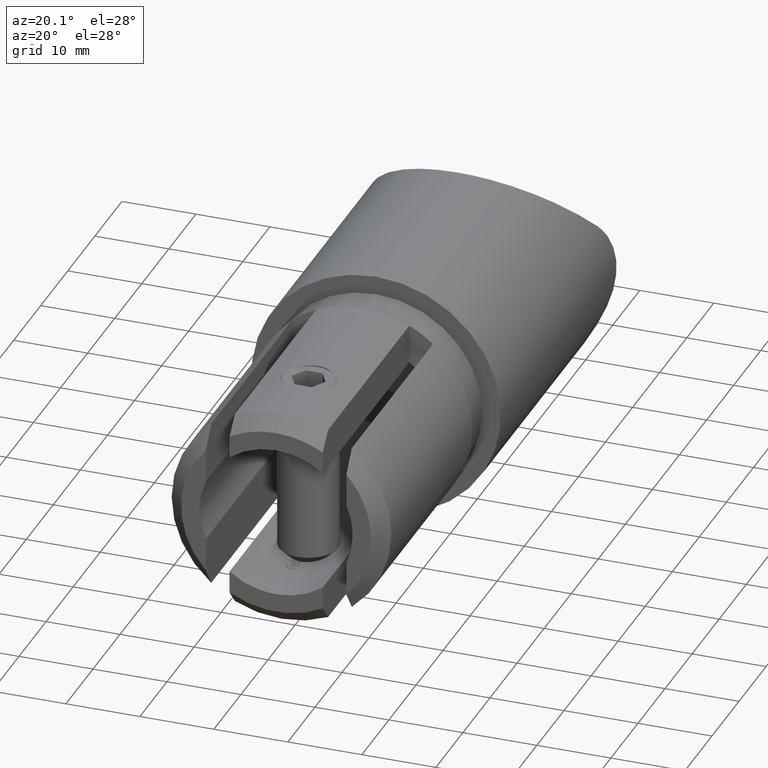
[diagram: clean part render]
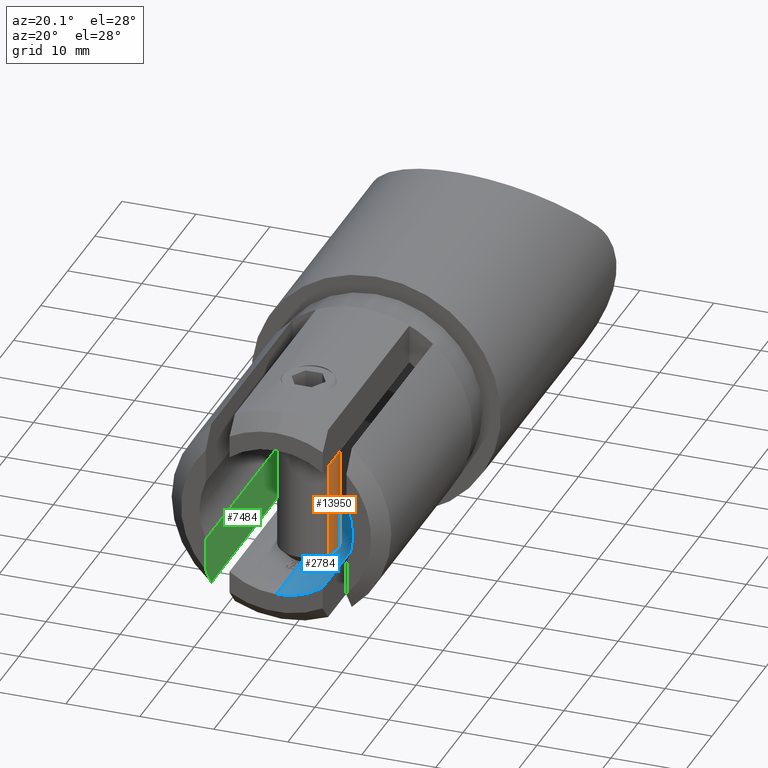
[diagram: same view with three faces highlighted in distinct colors, each labeled with its STEP entity id]
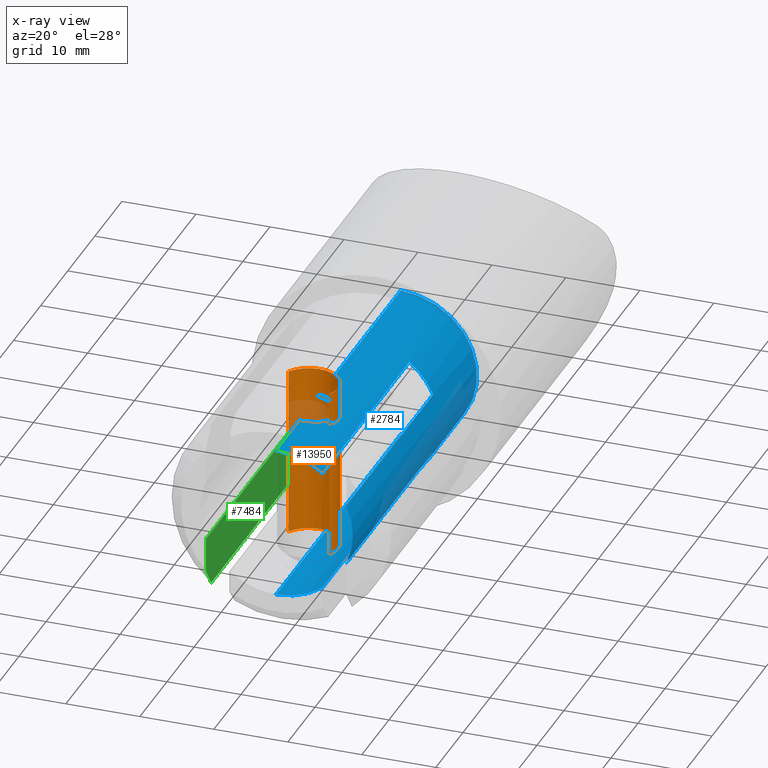
[diagram: x-ray of the same camera — body ghosted, the three highlighted faces saturated]
A machine part, auxiliary view with three faces highlighted in distinct colors.
The next image is the same camera in x-ray (body ghosted, the three faces saturated) — at least one of them is partly hidden behind the body in this view.
Their STEP definitions:

[orange] entity #13950 — the highlighted cylindrical surface (edge-blend (fillet) strip) has radius 4 mm, axis along (0, -0, -1).
#148 = VERTEX_POINT ( 'NONE', #6678 ) ;
#154 = EDGE_CURVE ( 'NONE', #2686, #9393, #9904, .T. ) ;
#204 = CYLINDRICAL_SURFACE ( 'NONE', #10160, 4.000000000000000000 ) ;
#351 = EDGE_CURVE ( 'NONE', #9942, #2686, #2430, .T. ) ;
#1753 = DIRECTION ( 'NONE',  ( -5.421010862427522200E-017, -1.000000000000000000, 0.0000000000000000000 ) ) ;
#1869 = CARTESIAN_POINT ( 'NONE',  ( 1.399999999999980800, 0.0000000000000000000, 4.000000000000000000 ) ) ;
#2430 = LINE ( 'NONE', #2969, #6340 ) ;
#2599 = ORIENTED_EDGE ( 'NONE', *, *, #7841, .T. ) ;
#2686 = VERTEX_POINT ( 'NONE', #1869 ) ;
#2867 = DIRECTION ( 'NONE',  ( 0.0000000000000000000, 0.0000000000000000000, -1.000000000000000000 ) ) ;
#2969 = CARTESIAN_POINT ( 'NONE',  ( 25.00000000000000000, 0.0000000000000000000, 4.000000000000000000 ) ) ;
#3473 = DIRECTION ( 'NONE',  ( -1.000000000000000000, 3.242134472605236300E-017, -0.0000000000000000000 ) ) ;
#3965 = ORIENTED_EDGE ( 'NONE', *, *, #154, .F. ) ;
#5003 = FACE_OUTER_BOUND ( 'NONE', #9872, .T. ) ;
#5157 = ORIENTED_EDGE ( 'NONE', *, *, #9299, .T. ) ;
#5701 = CARTESIAN_POINT ( 'NONE',  ( 25.00000000000000000, 4.898587196589412800E-016, -4.000000000000000000 ) ) ;
#5819 = EDGE_CURVE ( 'NONE', #9393, #148, #6063, .T. ) ;
#6063 = CIRCLE ( 'NONE', #10806, 4.000000000000000000 ) ;
#6340 = VECTOR ( 'NONE', #10541, 1000.000000000000000 ) ;
#6633 = LINE ( 'NONE', #5701, #8539 ) ;
#6678 = CARTESIAN_POINT ( 'NONE',  ( 1.399999999999980800, 4.898587196589412800E-016, -4.000000000000000000 ) ) ;
#6683 = ORIENTED_EDGE ( 'NONE', *, *, #5819, .F. ) ;
#7453 = AXIS2_PLACEMENT_3D ( 'NONE', #8271, #9374, #2867 ) ;
#7841 = EDGE_CURVE ( 'NONE', #9942, #11949, #8695, .T. ) ;
#8271 = CARTESIAN_POINT ( 'NONE',  ( 24.39999999999999900, 0.0000000000000000000, 0.0000000000000000000 ) ) ;
#8539 = VECTOR ( 'NONE', #8913, 1000.000000000000000 ) ;
#8695 = CIRCLE ( 'NONE', #7453, 4.000000000000000000 ) ;
#8913 = DIRECTION ( 'NONE',  ( -1.000000000000000000, -0.0000000000000000000, -0.0000000000000000000 ) ) ;
#9017 = CARTESIAN_POINT ( 'NONE',  ( 24.39999999999999900, 0.0000000000000000000, 4.000000000000000000 ) ) ;
#9299 = EDGE_CURVE ( 'NONE', #11949, #148, #6633, .T. ) ;
#9374 = DIRECTION ( 'NONE',  ( -1.000000000000000000, 0.0000000000000000000, 0.0000000000000000000 ) ) ;
#9393 = VERTEX_POINT ( 'NONE', #13464 ) ;
#9534 = CARTESIAN_POINT ( 'NONE',  ( 25.00000000000000000, 0.0000000000000000000, 0.0000000000000000000 ) ) ;
#9872 = EDGE_LOOP ( 'NONE', ( #2599, #5157, #6683, #3965, #12324 ) ) ;
#9904 = CIRCLE ( 'NONE', #12323, 4.000000000000000000 ) ;
#9942 = VERTEX_POINT ( 'NONE', #9017 ) ;
#10160 = AXIS2_PLACEMENT_3D ( 'NONE', #9534, #11832, #13003 ) ;
#10440 = CARTESIAN_POINT ( 'NONE',  ( 1.399999999999980800, -4.538988261647268600E-017, 0.0000000000000000000 ) ) ;
#10541 = DIRECTION ( 'NONE',  ( -1.000000000000000000, -0.0000000000000000000, -0.0000000000000000000 ) ) ;
#10806 = AXIS2_PLACEMENT_3D ( 'NONE', #10440, #11602, #1753 ) ;
#11602 = DIRECTION ( 'NONE',  ( -1.000000000000000000, 3.242134472605236300E-017, -0.0000000000000000000 ) ) ;
#11832 = DIRECTION ( 'NONE',  ( -1.000000000000000000, -0.0000000000000000000, -0.0000000000000000000 ) ) ;
#11949 = VERTEX_POINT ( 'NONE', #12670 ) ;
#12138 = DIRECTION ( 'NONE',  ( -5.421010862427522200E-017, -1.000000000000000000, 0.0000000000000000000 ) ) ;
#12232 = CARTESIAN_POINT ( 'NONE',  ( 1.399999999999980800, -4.538988261647268600E-017, 0.0000000000000000000 ) ) ;
#12323 = AXIS2_PLACEMENT_3D ( 'NONE', #12232, #3473, #12138 ) ;
#12324 = ORIENTED_EDGE ( 'NONE', *, *, #351, .F. ) ;
#12670 = CARTESIAN_POINT ( 'NONE',  ( 24.39999999999999900, 4.898587196589412800E-016, -4.000000000000000000 ) ) ;
#13003 = DIRECTION ( 'NONE',  ( 0.0000000000000000000, 0.0000000000000000000, 1.000000000000000000 ) ) ;
#13464 = CARTESIAN_POINT ( 'NONE',  ( 1.399999999999980800, 4.000000000000000000, 0.0000000000000000000 ) ) ;
#13950 = ADVANCED_FACE ( 'NONE', ( #5003 ), #204, .T. ) ;

[blue] entity #2784 — the highlighted cylindrical surface (partial cylindrical patch) has radius 10.35 mm, axis along (-0, -1, -0).
#16 = DIRECTION ( 'NONE',  ( 0.0000000000000000000, 0.0000000000000000000, -1.000000000000000000 ) ) ;
#20 = CARTESIAN_POINT ( 'NONE',  ( 0.0000000000000000000, -4.999999999999992000, 0.0000000000000000000 ) ) ;
#22 = ORIENTED_EDGE ( 'NONE', *, *, #7776, .F. ) ;
#75 = EDGE_CURVE ( 'NONE', #4708, #6898, #11819, .T. ) ;
#107 = DIRECTION ( 'NONE',  ( -0.0000000000000000000, -1.000000000000000000, -0.0000000000000000000 ) ) ;
#108 = ORIENTED_EDGE ( 'NONE', *, *, #14130, .F. ) ;
#133 = VERTEX_POINT ( 'NONE', #1400 ) ;
#135 = CARTESIAN_POINT ( 'NONE',  ( 0.0000000000000000000, -37.00000000000000000, 0.0000000000000000000 ) ) ;
#141 = DIRECTION ( 'NONE',  ( -0.0000000000000000000, -1.000000000000000000, -0.0000000000000000000 ) ) ;
#227 = ORIENTED_EDGE ( 'NONE', *, *, #10656, .F. ) ;
#255 = DIRECTION ( 'NONE',  ( 0.0000000000000000000, 1.000000000000000000, 0.0000000000000000000 ) ) ;
#279 = LINE ( 'NONE', #1521, #13813 ) ;
#307 = LINE ( 'NONE', #12454, #7315 ) ;
#357 = DIRECTION ( 'NONE',  ( -0.0000000000000000000, -1.000000000000000000, -0.0000000000000000000 ) ) ;
#404 = ORIENTED_EDGE ( 'NONE', *, *, #11186, .F. ) ;
#407 = CARTESIAN_POINT ( 'NONE',  ( 0.03298145209657681000, -12.49772717947731800, -10.34994749293275100 ) ) ;
#431 = CARTESIAN_POINT ( 'NONE',  ( 0.01696047008547008400, -24.06613498263889300, -10.34998610349088800 ) ) ;
#501 = DIRECTION ( 'NONE',  ( -0.0000000000000000000, -1.000000000000000000, -0.0000000000000000000 ) ) ;
#540 = ORIENTED_EDGE ( 'NONE', *, *, #8476, .F. ) ;
#556 = EDGE_CURVE ( 'NONE', #7342, #10092, #4782, .T. ) ;
#567 = VECTOR ( 'NONE', #8237, 1000.000000000000000 ) ;
#577 = CARTESIAN_POINT ( 'NONE',  ( 0.01137959079447232300, -24.15713213877648600, -10.35000000000000100 ) ) ;
#583 = EDGE_CURVE ( 'NONE', #5370, #5340, #13142, .T. ) ;
#633 = CARTESIAN_POINT ( 'NONE',  ( 2.701391935896606500, -22.92354968645598100, 9.992068611870221800 ) ) ;
#638 = CARTESIAN_POINT ( 'NONE',  ( 0.03392094017094016800, -16.10663937299679600, -10.34994441385159900 ) ) ;
#652 = CARTESIAN_POINT ( 'NONE',  ( 0.0000000000000000000, -24.80762553418802700, -10.35000000000000000 ) ) ;
#710 = ORIENTED_EDGE ( 'NONE', *, *, #11067, .T. ) ;
#719 = CARTESIAN_POINT ( 'NONE',  ( 9.499999999999998200, 9.000000000000003600, -4.107614879708180000 ) ) ;
#825 = ORIENTED_EDGE ( 'NONE', *, *, #3704, .F. ) ;
#826 = CARTESIAN_POINT ( 'NONE',  ( 0.0000000000000000000, 9.000000000000001800, -10.35000000000000000 ) ) ;
#865 = CARTESIAN_POINT ( 'NONE',  ( 0.0000000000000000000, -37.00000000000000000, -10.35000000000000000 ) ) ;
#892 = ORIENTED_EDGE ( 'NONE', *, *, #8857, .T. ) ;
#911 = CARTESIAN_POINT ( 'NONE',  ( 0.02359450554170731600, -20.07051245924850100, -10.35000000000000000 ) ) ;
#923 = CARTESIAN_POINT ( 'NONE',  ( 0.01696047008547008400, -27.03421724759616000, -10.34998610349088800 ) ) ;
#939 = CARTESIAN_POINT ( 'NONE',  ( 0.0000000000000000000, -23.55255074786325400, -10.35000000000000000 ) ) ;
#945 = EDGE_CURVE ( 'NONE', #8155, #3792, #6764, .T. ) ;
#953 = CARTESIAN_POINT ( 'NONE',  ( 0.03392094017094016800, -16.10663937299679600, -10.34994441385159900 ) ) ;
#961 = ORIENTED_EDGE ( 'NONE', *, *, #1207, .F. ) ;
#991 = CARTESIAN_POINT ( 'NONE',  ( 0.0000000000000000000, 9.000000000000001800, -10.35000000000000000 ) ) ;
#995 = CIRCLE ( 'NONE', #10365, 10.35000000000000000 ) ;
#1004 = CARTESIAN_POINT ( 'NONE',  ( 0.03334062381538302500, -20.13377132790780500, -10.34994631578223500 ) ) ;
#1006 = VERTEX_POINT ( 'NONE', #14058 ) ;
#1014 = DIRECTION ( 'NONE',  ( -0.0000000000000000000, -1.000000000000000000, -0.0000000000000000000 ) ) ;
#1077 = LINE ( 'NONE', #4048, #567 ) ;
#1087 = EDGE_CURVE ( 'NONE', #10642, #11035, #279, .T. ) ;
#1089 = CARTESIAN_POINT ( 'NONE',  ( 0.03392094017094016800, -19.15846395900107200, -10.34994441385159900 ) ) ;
#1106 = EDGE_CURVE ( 'NONE', #13911, #13557, #1283, .T. ) ;
#1132 = CARTESIAN_POINT ( 'NONE',  ( 0.0000000000000000000, 9.000000000000001800, -10.35000000000000000 ) ) ;
#1138 = LINE ( 'NONE', #4426, #1871 ) ;
#1148 = CARTESIAN_POINT ( 'NONE',  ( 0.03277526509720840600, -20.25550097915338600, -10.34994816869066600 ) ) ;
#1178 = B_SPLINE_CURVE_WITH_KNOTS ( 'NONE', 3,
 ( #6784, #7952, #8899, #9102 ),
 .UNSPECIFIED., .F., .F.,
 ( 4, 4 ),
 ( 0.0000000000000000000, 0.0001390896998286012200 ),
 .UNSPECIFIED. ) ;
#1207 = EDGE_CURVE ( 'NONE', #3794, #13324, #6524, .T. ) ;
#1217 = CARTESIAN_POINT ( 'NONE',  ( 2.941779307132074200E-013, -26.89628570502593900, -10.34999999999998900 ) ) ;
#1261 = VERTEX_POINT ( 'NONE', #4546 ) ;
#1276 = EDGE_CURVE ( 'NONE', #13030, #1485, #4304, .T. ) ;
#1283 = B_SPLINE_CURVE_WITH_KNOTS ( 'NONE', 3,
 ( #5797, #8009, #407, #3685 ),
 .UNSPECIFIED., .F., .F.,
 ( 4, 4 ),
 ( 0.0007607350962127554400, 0.0009246726897137504900 ),
 .UNSPECIFIED. ) ;
#1320 = LINE ( 'NONE', #3712, #1510 ) ;
#1342 = CARTESIAN_POINT ( 'NONE',  ( 0.0000000000000000000, 9.000000000000001800, -10.35000000000000000 ) ) ;
#1353 = ORIENTED_EDGE ( 'NONE', *, *, #13539, .T. ) ;
#1361 = B_SPLINE_CURVE_WITH_KNOTS ( 'NONE', 3,
 ( #12681, #9518, #12631, #9337, #11524, #6166, #13747, #633, #13846, #6114, #8280, #1766, #9430, #2927, #10496, #12732 ),
 .UNSPECIFIED., .F., .F.,
 ( 4, 2, 2, 2, 2, 2, 2, 4 ),
 ( 0.0000000000000000000, 0.0006692266279032026100, 0.001338453255806405200, 0.002007679883709608200, 0.002676906511612810400, 0.004015359767419223200, 0.004684586395322429400, 0.005353813023225633900 ),
 .UNSPECIFIED. ) ;
#1377 = CARTESIAN_POINT ( 'NONE',  ( 9.500000000000000000, -4.999999999999989300, -4.107614879708180000 ) ) ;
#1386 = VECTOR ( 'NONE', #5963, 1000.000000000000000 ) ;
#1400 = CARTESIAN_POINT ( 'NONE',  ( 1.267509438238515500E-015, -21.60000000000000900, 10.35000000000000000 ) ) ;
#1418 = VERTEX_POINT ( 'NONE', #11201 ) ;
#1439 = CARTESIAN_POINT ( 'NONE',  ( 0.0000000000000000000, 9.000000000000001800, -10.35000000000000000 ) ) ;
#1485 = VERTEX_POINT ( 'NONE', #13470 ) ;
#1510 = VECTOR ( 'NONE', #12384, 1000.000000000000000 ) ;
#1521 = CARTESIAN_POINT ( 'NONE',  ( 0.0000000000000000000, 9.000000000000001800, -10.35000000000000000 ) ) ;
#1545 = EDGE_LOOP ( 'NONE', ( #4372, #5804, #10052, #404, #12008, #710, #3819, #6113, #22, #13789, #13330, #12478, #12825, #2991, #11289, #9364, #2454, #7645, #4765, #5307, #9994, #7230, #3132, #6697, #11542, #11049, #5966, #1863, #12592, #10865, #3413, #227, #2820, #108, #10817, #7894, #10818, #7974, #13907, #11843, #540, #11111, #3634, #7328, #7294, #961, #8751, #3576, #3361, #8443, #2216, #1353, #12023, #13748, #3211, #10652, #9731, #8716, #14198, #1968, #12921, #9806, #892, #825, #12120, #11782 ) ) ;
#1598 = CARTESIAN_POINT ( 'NONE',  ( 6.299999999999999800, -37.00000000000000000, -8.211729415902596000 ) ) ;
#1621 = VERTEX_POINT ( 'NONE', #9207 ) ;
#1700 = CARTESIAN_POINT ( 'NONE',  ( 0.0000000000000000000, 9.000000000000001800, 0.0000000000000000000 ) ) ;
#1742 = EDGE_CURVE ( 'NONE', #13713, #2551, #10408, .T. ) ;
#1766 = CARTESIAN_POINT ( 'NONE',  ( 1.101451452984497400, -21.77574459522221400, 10.29328751494545800 ) ) ;
#1803 = CARTESIAN_POINT ( 'NONE',  ( 0.03311161729763324700, -12.38645894744306600, -10.34994706632891200 ) ) ;
#1828 = VERTEX_POINT ( 'NONE', #865 ) ;
#1863 = ORIENTED_EDGE ( 'NONE', *, *, #13929, .F. ) ;
#1867 = CARTESIAN_POINT ( 'NONE',  ( 0.0000000000000000000, 9.000000000000001800, -10.35000000000000000 ) ) ;
#1871 = VECTOR ( 'NONE', #2229, 1000.000000000000000 ) ;
#1874 = VERTEX_POINT ( 'NONE', #10482 ) ;
#1912 = CARTESIAN_POINT ( 'NONE',  ( 1.267509437117510600E-015, 9.000000000000001800, 10.35000000000000000 ) ) ;
#1916 = VERTEX_POINT ( 'NONE', #4208 ) ;
#1968 = ORIENTED_EDGE ( 'NONE', *, *, #12028, .T. ) ;
#2006 = EDGE_CURVE ( 'NONE', #4915, #3846, #4018, .T. ) ;
#2060 = DIRECTION ( 'NONE',  ( 0.0000000000000000000, 1.000000000000000000, 0.0000000000000000000 ) ) ;
#2078 = VERTEX_POINT ( 'NONE', #953 ) ;
#2086 = CARTESIAN_POINT ( 'NONE',  ( 0.03392094017094017500, -20.19782276642628500, -10.34994441385159900 ) ) ;
#2110 = VERTEX_POINT ( 'NONE', #1132 ) ;
#2134 = DIRECTION ( 'NONE',  ( 0.0000000000000000000, 1.000000000000000000, 0.0000000000000000000 ) ) ;
#2154 = VECTOR ( 'NONE', #12069, 1000.000000000000000 ) ;
#2214 = CARTESIAN_POINT ( 'NONE',  ( 0.01696047008547008400, -27.03421724759616000, -10.34998610349088800 ) ) ;
#2216 = ORIENTED_EDGE ( 'NONE', *, *, #556, .F. ) ;
#2229 = DIRECTION ( 'NONE',  ( -0.0000000000000000000, -1.000000000000000000, -0.0000000000000000000 ) ) ;
#2238 = DIRECTION ( 'NONE',  ( -0.0000000000000000000, -1.000000000000000000, -0.0000000000000000000 ) ) ;
#2239 = DIRECTION ( 'NONE',  ( 0.0000000000000000000, -1.000000000000000000, 0.0000000000000000000 ) ) ;
#2240 = VECTOR ( 'NONE', #13783, 1000.000000000000000 ) ;
#2273 = B_SPLINE_CURVE_WITH_KNOTS ( 'NONE', 3,
 ( #5437, #10775, #7542, #4252 ),
 .UNSPECIFIED., .F., .F.,
 ( 4, 4 ),
 ( 0.0000000000000000000, 0.0001893280310144309600 ),
 .UNSPECIFIED. ) ;
#2280 = CARTESIAN_POINT ( 'NONE',  ( 3.377617734580304500, -25.44865676253873900, 9.783472197335301600 ) ) ;
#2296 = DIRECTION ( 'NONE',  ( -0.0000000000000000000, -1.000000000000000000, -0.0000000000000000000 ) ) ;
#2310 = LINE ( 'NONE', #1342, #13584 ) ;
#2329 = CARTESIAN_POINT ( 'NONE',  ( 0.03392094017094017500, -20.19782276642628500, -10.34994441385159900 ) ) ;
#2368 = VERTEX_POINT ( 'NONE', #939 ) ;
#2398 = CARTESIAN_POINT ( 'NONE',  ( 0.01155295959033867500, -26.94114927652826800, -10.35000000000000000 ) ) ;
#2435 = EDGE_CURVE ( 'NONE', #4630, #12201, #4559, .T. ) ;
#2452 = VECTOR ( 'NONE', #12565, 1000.000000000000000 ) ;
#2454 = ORIENTED_EDGE ( 'NONE', *, *, #2976, .T. ) ;
#2474 = DIRECTION ( 'NONE',  ( 0.0000000000000000000, 1.000000000000000000, 0.0000000000000000000 ) ) ;
#2495 = VECTOR ( 'NONE', #13299, 1000.000000000000000 ) ;
#2529 = CARTESIAN_POINT ( 'NONE',  ( 0.0000000000000000000, -21.31376869658119600, -10.35000000000000000 ) ) ;
#2551 = VERTEX_POINT ( 'NONE', #9940 ) ;
#2563 = CARTESIAN_POINT ( 'NONE',  ( 0.0000000000000000000, -27.77570779914529800, -10.35000000000000000 ) ) ;
#2626 = VERTEX_POINT ( 'NONE', #10311 ) ;
#2697 = CARTESIAN_POINT ( 'NONE',  ( 0.0000000000000000000, 9.000000000000001800, -10.35000000000000000 ) ) ;
#2743 = EDGE_CURVE ( 'NONE', #13713, #2368, #8152, .T. ) ;
#2784 = ADVANCED_FACE ( 'NONE', ( #4961 ), #7646, .F. ) ;
#2785 = CARTESIAN_POINT ( 'NONE',  ( 0.0000000000000000000, -37.00000000000000000, 0.0000000000000000000 ) ) ;
#2798 = EDGE_CURVE ( 'NONE', #8589, #12830, #4089, .T. ) ;
#2820 = ORIENTED_EDGE ( 'NONE', *, *, #10959, .T. ) ;
#2845 = EDGE_CURVE ( 'NONE', #12616, #1261, #12768, .T. ) ;
#2888 = LINE ( 'NONE', #7745, #4705 ) ;
#2927 = CARTESIAN_POINT ( 'NONE',  ( 0.4454503112118056200, -21.62185377550479300, 10.34275815717657200 ) ) ;
#2968 = LINE ( 'NONE', #13308, #10072 ) ;
#2976 = EDGE_CURVE ( 'NONE', #14099, #5380, #6753, .T. ) ;
#2991 = ORIENTED_EDGE ( 'NONE', *, *, #583, .F. ) ;
#3030 = EDGE_CURVE ( 'NONE', #5176, #2551, #10854, .T. ) ;
#3095 = DIRECTION ( 'NONE',  ( -0.0000000000000000000, -1.000000000000000000, -0.0000000000000000000 ) ) ;
#3132 = ORIENTED_EDGE ( 'NONE', *, *, #9786, .T. ) ;
#3141 = CARTESIAN_POINT ( 'NONE',  ( 0.0000000000000000000, 9.000000000000001800, -10.35000000000000000 ) ) ;
#3182 = CARTESIAN_POINT ( 'NONE',  ( 2.559961637110909700, -27.24836696436187500, 10.02969392965470200 ) ) ;
#3211 = ORIENTED_EDGE ( 'NONE', *, *, #10607, .T. ) ;
#3247 = VECTOR ( 'NONE', #3589, 1000.000000000000000 ) ;
#3255 = AXIS2_PLACEMENT_3D ( 'NONE', #1700, #9282, #4920 ) ;
#3316 = CARTESIAN_POINT ( 'NONE',  ( -5.112429149681145100E-014, -28.40000000000064200, 10.35000000000021100 ) ) ;
#3327 = LINE ( 'NONE', #11276, #10973 ) ;
#3344 = EDGE_CURVE ( 'NONE', #4953, #3606, #2888, .T. ) ;
#3356 = CARTESIAN_POINT ( 'NONE',  ( 0.0000000000000000000, 9.000000000000001800, -10.35000000000000000 ) ) ;
#3361 = ORIENTED_EDGE ( 'NONE', *, *, #7587, .T. ) ;
#3389 = B_SPLINE_CURVE_WITH_KNOTS ( 'NONE', 3,
 ( #10556, #9574, #5497, #8657 ),
 .UNSPECIFIED., .F., .F.,
 ( 4, 4 ),
 ( 0.0000000000000000000, 0.0001431975852921743900 ),
 .UNSPECIFIED. ) ;
#3413 = ORIENTED_EDGE ( 'NONE', *, *, #2743, .T. ) ;
#3464 = CARTESIAN_POINT ( 'NONE',  ( 2.937533554483963100E-013, -23.92820344006866400, -10.35000000000000000 ) ) ;
#3487 = CARTESIAN_POINT ( 'NONE',  ( 0.01696047008547008400, -27.03421724759616000, -10.34998610349088800 ) ) ;
#3576 = ORIENTED_EDGE ( 'NONE', *, *, #9815, .F. ) ;
#3589 = DIRECTION ( 'NONE',  ( 0.0000000000000000000, 1.000000000000000000, 0.0000000000000000000 ) ) ;
#3606 = VERTEX_POINT ( 'NONE', #4773 ) ;
#3634 = ORIENTED_EDGE ( 'NONE', *, *, #12737, .F. ) ;
#3673 = CARTESIAN_POINT ( 'NONE',  ( 0.0000000000000000000, -22.55188301282051100, -10.35000000000000000 ) ) ;
#3685 = CARTESIAN_POINT ( 'NONE',  ( 0.03392094017094016800, -12.44211780515491100, -10.34994441385159900 ) ) ;
#3704 = EDGE_CURVE ( 'NONE', #12616, #10362, #12061, .T. ) ;
#3712 = CARTESIAN_POINT ( 'NONE',  ( 0.0000000000000000000, 9.000000000000001800, -10.35000000000000000 ) ) ;
#3719 = CARTESIAN_POINT ( 'NONE',  ( 3.869881777768083700E-016, -28.75359222342704900, -10.34999999999999100 ) ) ;
#3783 = EDGE_CURVE ( 'NONE', #2078, #11035, #2273, .T. ) ;
#3792 = VERTEX_POINT ( 'NONE', #13073 ) ;
#3794 = VERTEX_POINT ( 'NONE', #5259 ) ;
#3819 = ORIENTED_EDGE ( 'NONE', *, *, #8160, .F. ) ;
#3841 = CARTESIAN_POINT ( 'NONE',  ( 0.0000000000000000000, 9.000000000000001800, -10.35000000000000000 ) ) ;
#3845 = VERTEX_POINT ( 'NONE', #14025 ) ;
#3846 = VERTEX_POINT ( 'NONE', #7589 ) ;
#3882 = CARTESIAN_POINT ( 'NONE',  ( 0.01572887937184547600, -24.11149513460321700, -10.34998812169238700 ) ) ;
#3891 = VECTOR ( 'NONE', #13815, 1000.000000000000000 ) ;
#3955 = CARTESIAN_POINT ( 'NONE',  ( 0.02440894485334394600, -16.23226912304876600, -10.34999999999999800 ) ) ;
#3999 = VECTOR ( 'NONE', #255, 1000.000000000000000 ) ;
#4018 = B_SPLINE_CURVE_WITH_KNOTS ( 'NONE', 3,
 ( #11934, #11891, #10907, #1089 ),
 .UNSPECIFIED., .F., .F.,
 ( 4, 4 ),
 ( 0.0007607350962043421400, 0.0009246726897136279800 ),
 .UNSPECIFIED. ) ;
#4048 = CARTESIAN_POINT ( 'NONE',  ( 0.0000000000000000000, 9.000000000000001800, -10.35000000000000000 ) ) ;
#4081 = B_SPLINE_CURVE_WITH_KNOTS ( 'NONE', 3,
 ( #10529, #1803, #8216, #7252 ),
 .UNSPECIFIED., .F., .F.,
 ( 4, 4 ),
 ( 0.0000000000000000000, 0.0001649383054922219000 ),
 .UNSPECIFIED. ) ;
#4086 = VECTOR ( 'NONE', #6401, 1000.000000000000000 ) ;
#4089 = LINE ( 'NONE', #7363, #4223 ) ;
#4166 = VECTOR ( 'NONE', #357, 1000.000000000000000 ) ;
#4167 = CARTESIAN_POINT ( 'NONE',  ( 0.0000000000000000000, 9.000000000000001800, -10.35000000000000000 ) ) ;
#4173 = CARTESIAN_POINT ( 'NONE',  ( 0.0000000000000000000, 9.000000000000001800, -10.35000000000000000 ) ) ;
#4197 = CARTESIAN_POINT ( 'NONE',  ( -7.394097456574685100E-012, -12.60270360180989600, -10.34999999999998700 ) ) ;
#4208 = CARTESIAN_POINT ( 'NONE',  ( 1.988077383247672700E-013, -12.28095206869608800, -10.35000000000000000 ) ) ;
#4223 = VECTOR ( 'NONE', #1014, 1000.000000000000000 ) ;
#4228 = CARTESIAN_POINT ( 'NONE',  ( 0.0000000000000000000, -18.05735844017093700, -10.35000000000000000 ) ) ;
#4252 = CARTESIAN_POINT ( 'NONE',  ( 2.296306320006409000E-015, -15.92041143640413400, -10.35000000000000900 ) ) ;
#4253 = VECTOR ( 'NONE', #5309, 1000.000000000000000 ) ;
#4304 = LINE ( 'NONE', #4461, #11649 ) ;
#4306 = EDGE_CURVE ( 'NONE', #11546, #8705, #12527, .T. ) ;
#4367 = CARTESIAN_POINT ( 'NONE',  ( 0.0000000000000000000, -17.56550480769229900, -10.35000000000000000 ) ) ;
#4372 = ORIENTED_EDGE ( 'NONE', *, *, #7906, .F. ) ;
#4426 = CARTESIAN_POINT ( 'NONE',  ( 0.0000000000000000000, 9.000000000000001800, -10.35000000000000000 ) ) ;
#4454 = CARTESIAN_POINT ( 'NONE',  ( 0.0000000000000000000, -18.17608173076923000, -10.35000000000000000 ) ) ;
#4461 = CARTESIAN_POINT ( 'NONE',  ( 0.0000000000000000000, 9.000000000000001800, -10.35000000000000000 ) ) ;
#4521 = CARTESIAN_POINT ( 'NONE',  ( -1.232304845697558100E-011, -20.36502106823691700, -10.34999999999999400 ) ) ;
#4546 = CARTESIAN_POINT ( 'NONE',  ( 3.399999999999995500, -25.00000000000000000, 9.775607398008578000 ) ) ;
#4559 = CIRCLE ( 'NONE', #10246, 10.35000000000000000 ) ;
#4630 = VERTEX_POINT ( 'NONE', #13752 ) ;
#4673 = CARTESIAN_POINT ( 'NONE',  ( 0.0000000000000000000, 9.000000000000001800, -10.35000000000000000 ) ) ;
#4705 = VECTOR ( 'NONE', #8511, 1000.000000000000000 ) ;
#4708 = VERTEX_POINT ( 'NONE', #10787 ) ;
#4759 = LINE ( 'NONE', #9421, #2240 ) ;
#4765 = ORIENTED_EDGE ( 'NONE', *, *, #2006, .F. ) ;
#4773 = CARTESIAN_POINT ( 'NONE',  ( 6.300000000000000700, -4.999999999999990200, -8.211729415902596000 ) ) ;
#4782 = B_SPLINE_CURVE_WITH_KNOTS ( 'NONE', 3,
 ( #9689, #6351, #12980, #13026 ),
 .UNSPECIFIED., .F., .F.,
 ( 4, 4 ),
 ( 0.0006319149995893655100, 0.0007730376790648550900 ),
 .UNSPECIFIED. ) ;
#4826 = EDGE_CURVE ( 'NONE', #2110, #1916, #6838, .T. ) ;
#4878 = CARTESIAN_POINT ( 'NONE',  ( 9.500000000000005300, -37.00000000000000000, 4.107614879708180000 ) ) ;
#4915 = VERTEX_POINT ( 'NONE', #9137 ) ;
#4919 = EDGE_CURVE ( 'NONE', #3845, #5340, #11472, .T. ) ;
#4920 = DIRECTION ( 'NONE',  ( 0.0000000000000000000, 0.0000000000000000000, -1.000000000000000000 ) ) ;
#4953 = VERTEX_POINT ( 'NONE', #1598 ) ;
#4961 = FACE_OUTER_BOUND ( 'NONE', #1545, .T. ) ;
#4973 = EDGE_CURVE ( 'NONE', #1621, #12015, #10093, .T. ) ;
#5043 = CIRCLE ( 'NONE', #3255, 10.35000000000000000 ) ;
#5120 = CARTESIAN_POINT ( 'NONE',  ( 1.208446023979949300E-014, -20.01094764926701700, -10.35000000000000000 ) ) ;
#5176 = VERTEX_POINT ( 'NONE', #3673 ) ;
#5209 = DIRECTION ( 'NONE',  ( -0.0000000000000000000, -1.000000000000000000, -0.0000000000000000000 ) ) ;
#5231 = DIRECTION ( 'NONE',  ( 0.0000000000000000000, -1.000000000000000000, 0.0000000000000000000 ) ) ;
#5249 = VECTOR ( 'NONE', #9964, 1000.000000000000000 ) ;
#5254 = EDGE_CURVE ( 'NONE', #1261, #133, #1361, .T. ) ;
#5259 = CARTESIAN_POINT ( 'NONE',  ( 1.044285744846145500E-015, -27.16868170190930300, -10.34999999999999800 ) ) ;
#5260 = CARTESIAN_POINT ( 'NONE',  ( 1.267509437117510600E-015, 9.000000000000001800, 10.35000000000000000 ) ) ;
#5269 = CARTESIAN_POINT ( 'NONE',  ( 1.101726758131969000, -28.22418917604867500, 10.29326528947070500 ) ) ;
#5276 = EDGE_CURVE ( 'NONE', #3606, #12683, #12253, .T. ) ;
#5290 = DIRECTION ( 'NONE',  ( 2.710505431213762100E-016, -1.000000000000000000, -0.0000000000000000000 ) ) ;
#5291 = VERTEX_POINT ( 'NONE', #9630 ) ;
#5295 = CARTESIAN_POINT ( 'NONE',  ( 0.01696047008547008400, -28.61233598758012800, -10.34998610349088800 ) ) ;
#5307 = ORIENTED_EDGE ( 'NONE', *, *, #11419, .T. ) ;
#5309 = DIRECTION ( 'NONE',  ( -0.0000000000000000000, -1.000000000000000000, -0.0000000000000000000 ) ) ;
#5340 = VERTEX_POINT ( 'NONE', #7575 ) ;
#5348 = LINE ( 'NONE', #11284, #6684 ) ;
#5370 = VERTEX_POINT ( 'NONE', #4367 ) ;
#5380 = VERTEX_POINT ( 'NONE', #10899 ) ;
#5399 = CARTESIAN_POINT ( 'NONE',  ( 3.399999999999995000, -25.22631275307678300, 9.775607398008578000 ) ) ;
#5433 = VERTEX_POINT ( 'NONE', #6990 ) ;
#5437 = CARTESIAN_POINT ( 'NONE',  ( 0.03392094017094016800, -16.10663937299679600, -10.34994441385159900 ) ) ;
#5438 = LINE ( 'NONE', #9920, #10545 ) ;
#5497 = CARTESIAN_POINT ( 'NONE',  ( 0.01208486397682834700, -28.51643018232809400, -10.35000000000000700 ) ) ;
#5519 = CARTESIAN_POINT ( 'NONE',  ( 0.0000000000000000000, 9.000000000000001800, -10.35000000000000000 ) ) ;
#5583 = EDGE_CURVE ( 'NONE', #3845, #2078, #11706, .T. ) ;
#5585 = DIRECTION ( 'NONE',  ( 0.0000000000000000000, 1.000000000000000000, 0.0000000000000000000 ) ) ;
#5598 = DIRECTION ( 'NONE',  ( -0.0000000000000000000, -1.000000000000000000, -0.0000000000000000000 ) ) ;
#5618 = CARTESIAN_POINT ( 'NONE',  ( 6.300000000000000700, 9.000000000000001800, 8.211729415902596000 ) ) ;
#5653 = DIRECTION ( 'NONE',  ( -0.0000000000000000000, -1.000000000000000000, -0.0000000000000000000 ) ) ;
#5666 = CARTESIAN_POINT ( 'NONE',  ( 0.03392094017094016800, -12.44211780515491100, -10.34994441385159900 ) ) ;
#5706 = CARTESIAN_POINT ( 'NONE',  ( 0.0000000000000000000, -22.16179220085470200, -10.35000000000000000 ) ) ;
#5760 = VECTOR ( 'NONE', #8880, 1000.000000000000000 ) ;
#5774 = VERTEX_POINT ( 'NONE', #431 ) ;
#5797 = CARTESIAN_POINT ( 'NONE',  ( -7.394097456574685100E-012, -12.60270360180989600, -10.34999999999998700 ) ) ;
#5804 = ORIENTED_EDGE ( 'NONE', *, *, #5851, .F. ) ;
#5811 = VECTOR ( 'NONE', #10734, 1000.000000000000000 ) ;
#5851 = EDGE_CURVE ( 'NONE', #2110, #11780, #5043, .T. ) ;
#5868 = DIRECTION ( 'NONE',  ( 0.0000000000000000000, 1.000000000000000000, 0.0000000000000000000 ) ) ;
#5874 = CARTESIAN_POINT ( 'NONE',  ( 0.0000000000000000000, 9.000000000000001800, -10.35000000000000000 ) ) ;
#5915 = CARTESIAN_POINT ( 'NONE',  ( -1.155141181818052100E-015, -24.20059943695204300, -10.35000000000000000 ) ) ;
#5950 = CARTESIAN_POINT ( 'NONE',  ( 0.0000000000000000000, 9.000000000000001800, -10.35000000000000000 ) ) ;
#5952 = VECTOR ( 'NONE', #7940, 1000.000000000000000 ) ;
#5963 = DIRECTION ( 'NONE',  ( 0.0000000000000000000, 1.000000000000000000, 0.0000000000000000000 ) ) ;
#5966 = ORIENTED_EDGE ( 'NONE', *, *, #12552, .T. ) ;
#6044 = CARTESIAN_POINT ( 'NONE',  ( 0.0000000000000000000, 9.000000000000001800, -10.35000000000000000 ) ) ;
#6078 = B_SPLINE_CURVE_WITH_KNOTS ( 'NONE', 3,
 ( #2086, #1004, #911, #10771 ),
 .UNSPECIFIED., .F., .F.,
 ( 4, 4 ),
 ( 0.0000000000000000000, 0.0001900168243269328800 ),
 .UNSPECIFIED. ) ;
#6113 = ORIENTED_EDGE ( 'NONE', *, *, #1276, .T. ) ;
#6114 = CARTESIAN_POINT ( 'NONE',  ( 2.091676469766816200, -22.28360442566475200, 10.14149672746026300 ) ) ;
#6158 = EDGE_CURVE ( 'NONE', #1621, #9408, #6396, .T. ) ;
#6166 = CARTESIAN_POINT ( 'NONE',  ( 3.052766957080746700, -23.48666601703404700, 9.889954007256733300 ) ) ;
#6293 = CARTESIAN_POINT ( 'NONE',  ( 0.0000000000000000000, -29.79400373931623800, -10.35000000000000000 ) ) ;
#6351 = CARTESIAN_POINT ( 'NONE',  ( 0.01193960196499805000, -28.70766658262733600, -10.35000000000000000 ) ) ;
#6353 = CARTESIAN_POINT ( 'NONE',  ( 2.078197989147734700, -27.70014910125671600, 10.14096062620177600 ) ) ;
#6355 = VERTEX_POINT ( 'NONE', #6421 ) ;
#6375 = VECTOR ( 'NONE', #2060, 1000.000000000000000 ) ;
#6396 = LINE ( 'NONE', #6044, #10663 ) ;
#6401 = DIRECTION ( 'NONE',  ( -0.0000000000000000000, -1.000000000000000000, -0.0000000000000000000 ) ) ;
#6421 = CARTESIAN_POINT ( 'NONE',  ( 0.0000000000000000000, -27.89443108974359100, -10.35000000000000000 ) ) ;
#6441 = CARTESIAN_POINT ( 'NONE',  ( 2.948579775946166900, -26.70727057738863800, 9.921931312388082300 ) ) ;
#6457 = VECTOR ( 'NONE', #14026, 1000.000000000000000 ) ;
#6513 = B_SPLINE_CURVE_WITH_KNOTS ( 'NONE', 3,
 ( #7540, #8681, #10770, #8724 ),
 .UNSPECIFIED., .F., .F.,
 ( 4, 4 ),
 ( 0.0000000000000000000, 0.0001649383054922136600 ),
 .UNSPECIFIED. ) ;
#6524 = B_SPLINE_CURVE_WITH_KNOTS ( 'NONE', 3,
 ( #7532, #11789, #12020, #2214 ),
 .UNSPECIFIED., .F., .F.,
 ( 4, 4 ),
 ( 0.0006532396669199311800, 0.0007873986448933895800 ),
 .UNSPECIFIED. ) ;
#6526 = VERTEX_POINT ( 'NONE', #4228 ) ;
#6546 = CARTESIAN_POINT ( 'NONE',  ( 0.0000000000000000000, -37.00000000000000000, 0.0000000000000000000 ) ) ;
#6553 = CARTESIAN_POINT ( 'NONE',  ( 0.01587707635407316000, -26.98773601389148500, -10.34998787884273800 ) ) ;
#6614 = CARTESIAN_POINT ( 'NONE',  ( 0.03392094017094017500, -20.19782276642628500, -10.34994441385159900 ) ) ;
#6684 = VECTOR ( 'NONE', #141, 1000.000000000000000 ) ;
#6694 = LINE ( 'NONE', #991, #12177 ) ;
#6697 = ORIENTED_EDGE ( 'NONE', *, *, #13471, .F. ) ;
#6725 = DIRECTION ( 'NONE',  ( -0.0000000000000000000, -1.000000000000000000, -0.0000000000000000000 ) ) ;
#6753 = LINE ( 'NONE', #6862, #8494 ) ;
#6764 = LINE ( 'NONE', #12657, #3891 ) ;
#6784 = CARTESIAN_POINT ( 'NONE',  ( 0.01696047008547008400, -24.06613498263889300, -10.34998610349088800 ) ) ;
#6838 = LINE ( 'NONE', #10971, #11986 ) ;
#6862 = CARTESIAN_POINT ( 'NONE',  ( 0.0000000000000000000, 9.000000000000001800, -10.35000000000000000 ) ) ;
#6889 = CARTESIAN_POINT ( 'NONE',  ( 0.0000000000000000000, -13.27450587606837300, -10.35000000000000000 ) ) ;
#6898 = VERTEX_POINT ( 'NONE', #12359 ) ;
#6899 = LINE ( 'NONE', #5519, #12380 ) ;
#6990 = CARTESIAN_POINT ( 'NONE',  ( 0.0000000000000000000, -26.24926549145298400, -10.35000000000000000 ) ) ;
#6998 = VERTEX_POINT ( 'NONE', #10615 ) ;
#7019 = VERTEX_POINT ( 'NONE', #12752 ) ;
#7169 = CARTESIAN_POINT ( 'NONE',  ( 0.03244764762850849100, -16.16958410204309600, -10.34994924242518100 ) ) ;
#7185 = VERTEX_POINT ( 'NONE', #3464 ) ;
#7206 = EDGE_CURVE ( 'NONE', #6998, #12015, #12850, .T. ) ;
#7230 = ORIENTED_EDGE ( 'NONE', *, *, #13423, .F. ) ;
#7252 = CARTESIAN_POINT ( 'NONE',  ( 1.988077383247672700E-013, -12.28095206869608800, -10.35000000000000000 ) ) ;
#7294 = ORIENTED_EDGE ( 'NONE', *, *, #13001, .F. ) ;
#7315 = VECTOR ( 'NONE', #501, 1000.000000000000000 ) ;
#7328 = ORIENTED_EDGE ( 'NONE', *, *, #75, .T. ) ;
#7342 = VERTEX_POINT ( 'NONE', #3719 ) ;
#7363 = CARTESIAN_POINT ( 'NONE',  ( 0.0000000000000000000, 9.000000000000001800, -10.35000000000000000 ) ) ;
#7412 = EDGE_CURVE ( 'NONE', #10092, #1418, #3389, .T. ) ;
#7456 = LINE ( 'NONE', #5950, #13458 ) ;
#7532 = CARTESIAN_POINT ( 'NONE',  ( 1.044285744846145500E-015, -27.16868170190930300, -10.34999999999999800 ) ) ;
#7540 = CARTESIAN_POINT ( 'NONE',  ( 0.03392094017094016800, -19.15846395900107200, -10.34994441385159900 ) ) ;
#7542 = CARTESIAN_POINT ( 'NONE',  ( 0.02364925490793149200, -15.97984910911498900, -10.34999999999999400 ) ) ;
#7575 = CARTESIAN_POINT ( 'NONE',  ( 0.0000000000000000000, -16.66659989316238800, -10.35000000000000000 ) ) ;
#7587 = EDGE_CURVE ( 'NONE', #6355, #1418, #2968, .T. ) ;
#7589 = CARTESIAN_POINT ( 'NONE',  ( 0.03392094017094016800, -19.15846395900107200, -10.34994441385159900 ) ) ;
#7645 = ORIENTED_EDGE ( 'NONE', *, *, #9257, .F. ) ;
#7646 = CYLINDRICAL_SURFACE ( 'NONE', #10969, 10.35000000000000000 ) ;
#7656 = EDGE_CURVE ( 'NONE', #2626, #9203, #10905, .T. ) ;
#7692 = CARTESIAN_POINT ( 'NONE',  ( 0.02385680930952854100, -20.31273499757883600, -10.35000000000003000 ) ) ;
#7713 = VERTEX_POINT ( 'NONE', #12376 ) ;
#7731 = LINE ( 'NONE', #8006, #3999 ) ;
#7745 = CARTESIAN_POINT ( 'NONE',  ( 6.300000000000000700, 9.000000000000001800, -8.211729415902596000 ) ) ;
#7776 = EDGE_CURVE ( 'NONE', #10642, #1485, #4759, .T. ) ;
#7847 = VECTOR ( 'NONE', #5209, 1000.000000000000000 ) ;
#7894 = ORIENTED_EDGE ( 'NONE', *, *, #2798, .T. ) ;
#7906 = EDGE_CURVE ( 'NONE', #11780, #133, #10042, .T. ) ;
#7932 = EDGE_CURVE ( 'NONE', #3794, #9898, #10725, .T. ) ;
#7940 = DIRECTION ( 'NONE',  ( 0.0000000000000000000, 1.000000000000000000, 0.0000000000000000000 ) ) ;
#7941 = CARTESIAN_POINT ( 'NONE',  ( 0.0000000000000000000, -22.43315972222221800, -10.35000000000000000 ) ) ;
#7952 = CARTESIAN_POINT ( 'NONE',  ( 0.01587707635407330600, -24.01965374893421400, -10.34998787884273800 ) ) ;
#7974 = ORIENTED_EDGE ( 'NONE', *, *, #7206, .T. ) ;
#8006 = CARTESIAN_POINT ( 'NONE',  ( 0.0000000000000000000, 9.000000000000001800, -10.35000000000000000 ) ) ;
#8009 = CARTESIAN_POINT ( 'NONE',  ( 0.02316344104410246100, -12.55275902712426700, -10.35000000000001700 ) ) ;
#8029 = VERTEX_POINT ( 'NONE', #5120 ) ;
#8130 = EDGE_CURVE ( 'NONE', #5370, #6526, #10891, .T. ) ;
#8152 = LINE ( 'NONE', #3141, #5811 ) ;
#8155 = VERTEX_POINT ( 'NONE', #5706 ) ;
#8160 = EDGE_CURVE ( 'NONE', #13030, #5291, #5438, .T. ) ;
#8214 = DIRECTION ( 'NONE',  ( 0.0000000000000000000, 1.000000000000000000, 0.0000000000000000000 ) ) ;
#8216 = CARTESIAN_POINT ( 'NONE',  ( 0.02275673954642202400, -12.33140235106349200, -10.35000000000000500 ) ) ;
#8237 = DIRECTION ( 'NONE',  ( -0.0000000000000000000, -1.000000000000000000, -0.0000000000000000000 ) ) ;
#8268 = CARTESIAN_POINT ( 'NONE',  ( -1.232304845697558100E-011, -20.36502106823691700, -10.34999999999999400 ) ) ;
#8280 = CARTESIAN_POINT ( 'NONE',  ( 1.714708922145792500, -22.03085093227106100, 10.21528883521009600 ) ) ;
#8443 = ORIENTED_EDGE ( 'NONE', *, *, #7412, .F. ) ;
#8476 = EDGE_CURVE ( 'NONE', #5433, #9408, #11939, .T. ) ;
#8494 = VECTOR ( 'NONE', #11270, 1000.000000000000000 ) ;
#8495 = EDGE_CURVE ( 'NONE', #7019, #3792, #307, .T. ) ;
#8511 = DIRECTION ( 'NONE',  ( 0.0000000000000000000, 1.000000000000000000, 0.0000000000000000000 ) ) ;
#8530 = DIRECTION ( 'NONE',  ( 0.0000000000000000000, 1.000000000000000000, 0.0000000000000000000 ) ) ;
#8556 = CARTESIAN_POINT ( 'NONE',  ( 0.0000000000000000000, 9.000000000000001800, 0.0000000000000000000 ) ) ;
#8574 = DIRECTION ( 'NONE',  ( 2.710505431213762100E-016, -1.000000000000000000, -0.0000000000000000000 ) ) ;
#8589 = VERTEX_POINT ( 'NONE', #10464 ) ;
#8599 = CARTESIAN_POINT ( 'NONE',  ( 1.511278528435532100, -28.05372475872058800, 10.24114980744331400 ) ) ;
#8657 = CARTESIAN_POINT ( 'NONE',  ( -7.503517872053967900E-012, -28.47002704324041400, -10.34999999999999800 ) ) ;
#8681 = CARTESIAN_POINT ( 'NONE',  ( 0.03311161729763353900, -19.10280510128922800, -10.34994706632891200 ) ) ;
#8705 = VERTEX_POINT ( 'NONE', #11830 ) ;
#8709 = DIRECTION ( 'NONE',  ( -1.000000000000000000, -2.514091994169285700E-016, 3.552713678800500900E-015 ) ) ;
#8716 = ORIENTED_EDGE ( 'NONE', *, *, #9147, .T. ) ;
#8724 = CARTESIAN_POINT ( 'NONE',  ( 2.006396588314415100E-013, -18.99729822254225600, -10.34999999999999800 ) ) ;
#8751 = ORIENTED_EDGE ( 'NONE', *, *, #7932, .T. ) ;
#8763 = DIRECTION ( 'NONE',  ( -0.0000000000000000000, -1.000000000000000000, -0.0000000000000000000 ) ) ;
#8789 = DIRECTION ( 'NONE',  ( 0.0000000000000000000, 0.0000000000000000000, -1.000000000000000000 ) ) ;
#8857 = EDGE_CURVE ( 'NONE', #1006, #10362, #995, .T. ) ;
#8880 = DIRECTION ( 'NONE',  ( -0.0000000000000000000, -1.000000000000000000, -0.0000000000000000000 ) ) ;
#8899 = CARTESIAN_POINT ( 'NONE',  ( 0.01155295959033969700, -23.97306701157098600, -10.34999999999999800 ) ) ;
#8919 = VERTEX_POINT ( 'NONE', #2329 ) ;
#8990 = EDGE_CURVE ( 'NONE', #8589, #5774, #11595, .T. ) ;
#8992 = CARTESIAN_POINT ( 'NONE',  ( 1.267509437117510600E-015, 9.000000000000001800, 10.35000000000000000 ) ) ;
#9102 = CARTESIAN_POINT ( 'NONE',  ( 2.937533554483963100E-013, -23.92820344006866400, -10.35000000000000000 ) ) ;
#9137 = CARTESIAN_POINT ( 'NONE',  ( -1.092991960434104700E-011, -19.31904975566368800, -10.35000000000001000 ) ) ;
#9147 = EDGE_CURVE ( 'NONE', #12683, #4630, #9727, .T. ) ;
#9171 = VECTOR ( 'NONE', #10635, 1000.000000000000000 ) ;
#9203 = VERTEX_POINT ( 'NONE', #6293 ) ;
#9207 = CARTESIAN_POINT ( 'NONE',  ( 0.0000000000000000000, -25.58780715811965200, -10.35000000000000000 ) ) ;
#9225 = AXIS2_PLACEMENT_3D ( 'NONE', #2785, #5231, #12896 ) ;
#9257 = EDGE_CURVE ( 'NONE', #3846, #5380, #6513, .T. ) ;
#9282 = DIRECTION ( 'NONE',  ( 0.0000000000000000000, -1.000000000000000000, 0.0000000000000000000 ) ) ;
#9337 = CARTESIAN_POINT ( 'NONE',  ( 3.290209401338214600, -24.11448948153646700, 9.813213182969324300 ) ) ;
#9364 = ORIENTED_EDGE ( 'NONE', *, *, #10314, .F. ) ;
#9408 = VERTEX_POINT ( 'NONE', #12343 ) ;
#9421 = CARTESIAN_POINT ( 'NONE',  ( 0.0000000000000000000, 9.000000000000001800, -10.35000000000000000 ) ) ;
#9430 = CARTESIAN_POINT ( 'NONE',  ( 0.8853208742777067800, -21.70963454257767100, 10.31442093513588000 ) ) ;
#9467 = LINE ( 'NONE', #5618, #2495 ) ;
#9518 = CARTESIAN_POINT ( 'NONE',  ( 3.399999999999996400, -24.77357860714353100, 9.775607398008578000 ) ) ;
#9560 = CARTESIAN_POINT ( 'NONE',  ( -5.112429149681145100E-014, -28.40000000000064200, 10.35000000000021100 ) ) ;
#9574 = CARTESIAN_POINT ( 'NONE',  ( 0.01596291605803654100, -28.56415171421777500, -10.34998773817764800 ) ) ;
#9630 = CARTESIAN_POINT ( 'NONE',  ( 0.0000000000000000000, -13.15578258547008300, -10.35000000000000000 ) ) ;
#9643 = VERTEX_POINT ( 'NONE', #8268 ) ;
#9650 = CARTESIAN_POINT ( 'NONE',  ( 2.248326062306118100, -27.55999756005126100, 10.10411766675284900 ) ) ;
#9689 = CARTESIAN_POINT ( 'NONE',  ( 3.869881777768083700E-016, -28.75359222342704900, -10.34999999999999100 ) ) ;
#9694 = CARTESIAN_POINT ( 'NONE',  ( 0.0000000000000000000, -25.46908386752135900, -10.35000000000000000 ) ) ;
#9727 = LINE ( 'NONE', #719, #7847 ) ;
#9731 = ORIENTED_EDGE ( 'NONE', *, *, #5276, .T. ) ;
#9738 = EDGE_CURVE ( 'NONE', #8919, #8029, #6078, .T. ) ;
#9784 = LINE ( 'NONE', #13951, #6375 ) ;
#9786 = EDGE_CURVE ( 'NONE', #9643, #13520, #6899, .T. ) ;
#9806 = ORIENTED_EDGE ( 'NONE', *, *, #13453, .T. ) ;
#9815 = EDGE_CURVE ( 'NONE', #6355, #9898, #9979, .T. ) ;
#9898 = VERTEX_POINT ( 'NONE', #2563 ) ;
#9920 = CARTESIAN_POINT ( 'NONE',  ( 0.0000000000000000000, 9.000000000000001800, -10.35000000000000000 ) ) ;
#9940 = CARTESIAN_POINT ( 'NONE',  ( 0.0000000000000000000, -23.16245993589743100, -10.35000000000000000 ) ) ;
#9964 = DIRECTION ( 'NONE',  ( -0.0000000000000000000, -1.000000000000000000, -0.0000000000000000000 ) ) ;
#9979 = LINE ( 'NONE', #3356, #2154 ) ;
#9994 = ORIENTED_EDGE ( 'NONE', *, *, #9738, .F. ) ;
#10037 = CARTESIAN_POINT ( 'NONE',  ( 1.267509437117510600E-015, -37.00000000000000000, 10.35000000000000000 ) ) ;
#10042 = LINE ( 'NONE', #5260, #6457 ) ;
#10052 = ORIENTED_EDGE ( 'NONE', *, *, #4826, .T. ) ;
#10072 = VECTOR ( 'NONE', #6725, 1000.000000000000000 ) ;
#10076 = VECTOR ( 'NONE', #8214, 1000.000000000000000 ) ;
#10092 = VERTEX_POINT ( 'NONE', #5295 ) ;
#10093 = LINE ( 'NONE', #10260, #1386 ) ;
#10117 = CARTESIAN_POINT ( 'NONE',  ( 0.0000000000000000000, 9.000000000000001800, -10.35000000000000000 ) ) ;
#10246 = AXIS2_PLACEMENT_3D ( 'NONE', #6546, #12014, #16 ) ;
#10260 = CARTESIAN_POINT ( 'NONE',  ( 0.0000000000000000000, 9.000000000000001800, -10.35000000000000000 ) ) ;
#10311 = CARTESIAN_POINT ( 'NONE',  ( 0.0000000000000000000, -29.91272702991452800, -10.35000000000000000 ) ) ;
#10314 = EDGE_CURVE ( 'NONE', #14099, #6526, #7731, .T. ) ;
#10362 = VERTEX_POINT ( 'NONE', #10037 ) ;
#10365 = AXIS2_PLACEMENT_3D ( 'NONE', #135, #2239, #8789 ) ;
#10408 = LINE ( 'NONE', #13487, #10076 ) ;
#10464 = CARTESIAN_POINT ( 'NONE',  ( -1.155141181818052100E-015, -24.20059943695204300, -10.35000000000000000 ) ) ;
#10482 = CARTESIAN_POINT ( 'NONE',  ( 0.0000000000000000000, -23.67127403846154000, -10.35000000000000000 ) ) ;
#10496 = CARTESIAN_POINT ( 'NONE',  ( 0.2236530457140137900, -21.60000000000001600, 10.35000000000000000 ) ) ;
#10529 = CARTESIAN_POINT ( 'NONE',  ( 0.03392094017094016800, -12.44211780515491100, -10.34994441385159900 ) ) ;
#10545 = VECTOR ( 'NONE', #2474, 1000.000000000000000 ) ;
#10556 = CARTESIAN_POINT ( 'NONE',  ( 0.01696047008547008400, -28.61233598758012800, -10.34998610349088800 ) ) ;
#10588 = EDGE_CURVE ( 'NONE', #2626, #1828, #1077, .T. ) ;
#10593 = DIRECTION ( 'NONE',  ( 0.0000000000000000000, 0.0000000000000000000, -1.000000000000000000 ) ) ;
#10607 = EDGE_CURVE ( 'NONE', #1828, #4953, #12017, .T. ) ;
#10615 = CARTESIAN_POINT ( 'NONE',  ( 0.0000000000000000000, -24.92634882478631700, -10.35000000000000000 ) ) ;
#10618 = AXIS2_PLACEMENT_3D ( 'NONE', #20, #8574, #8709 ) ;
#10635 = DIRECTION ( 'NONE',  ( -0.0000000000000000000, -1.000000000000000000, -0.0000000000000000000 ) ) ;
#10642 = VERTEX_POINT ( 'NONE', #12689 ) ;
#10652 = ORIENTED_EDGE ( 'NONE', *, *, #3344, .T. ) ;
#10656 = EDGE_CURVE ( 'NONE', #1874, #2368, #9784, .T. ) ;
#10663 = VECTOR ( 'NONE', #12756, 1000.000000000000000 ) ;
#10686 = CARTESIAN_POINT ( 'NONE',  ( 0.8851967297700651400, -28.29037942876687600, 10.31442556502719800 ) ) ;
#10718 = AXIS2_PLACEMENT_3D ( 'NONE', #11835, #5290, #12956 ) ;
#10725 = LINE ( 'NONE', #4173, #4253 ) ;
#10734 = DIRECTION ( 'NONE',  ( -0.0000000000000000000, -1.000000000000000000, -0.0000000000000000000 ) ) ;
#10770 = CARTESIAN_POINT ( 'NONE',  ( 0.02275673954641355100, -19.04774850490966600, -10.35000000000000000 ) ) ;
#10771 = CARTESIAN_POINT ( 'NONE',  ( 1.208446023979949300E-014, -20.01094764926701700, -10.35000000000000000 ) ) ;
#10775 = CARTESIAN_POINT ( 'NONE',  ( 0.03196819760792183500, -16.04295806259088800, -10.34995081377617900 ) ) ;
#10787 = CARTESIAN_POINT ( 'NONE',  ( 0.0000000000000000000, -26.63935630341881500, -10.35000000000000000 ) ) ;
#10817 = ORIENTED_EDGE ( 'NONE', *, *, #8990, .F. ) ;
#10818 = ORIENTED_EDGE ( 'NONE', *, *, #13219, .F. ) ;
#10854 = LINE ( 'NONE', #1439, #5249 ) ;
#10865 = ORIENTED_EDGE ( 'NONE', *, *, #1742, .F. ) ;
#10871 = CARTESIAN_POINT ( 'NONE',  ( 9.499999999999998200, 9.000000000000003600, 4.107614879708180000 ) ) ;
#10891 = LINE ( 'NONE', #1867, #4086 ) ;
#10899 = CARTESIAN_POINT ( 'NONE',  ( 2.006396588314415100E-013, -18.99729822254225600, -10.34999999999999800 ) ) ;
#10905 = LINE ( 'NONE', #5874, #5952 ) ;
#10907 = CARTESIAN_POINT ( 'NONE',  ( 0.03298145209652966800, -19.21407333332630800, -10.34994749293275100 ) ) ;
#10941 = VERTEX_POINT ( 'NONE', #7941 ) ;
#10959 = EDGE_CURVE ( 'NONE', #1874, #7185, #5348, .T. ) ;
#10969 = AXIS2_PLACEMENT_3D ( 'NONE', #8556, #3095, #10593 ) ;
#10971 = CARTESIAN_POINT ( 'NONE',  ( 0.0000000000000000000, 9.000000000000001800, -10.35000000000000000 ) ) ;
#10973 = VECTOR ( 'NONE', #5868, 1000.000000000000000 ) ;
#10984 = CARTESIAN_POINT ( 'NONE',  ( 0.0000000000000000000, 9.000000000000001800, -10.35000000000000000 ) ) ;
#11035 = VERTEX_POINT ( 'NONE', #13404 ) ;
#11049 = ORIENTED_EDGE ( 'NONE', *, *, #945, .F. ) ;
#11067 = EDGE_CURVE ( 'NONE', #13911, #5291, #14081, .T. ) ;
#11111 = ORIENTED_EDGE ( 'NONE', *, *, #11645, .T. ) ;
#11114 = VECTOR ( 'NONE', #107, 1000.000000000000000 ) ;
#11122 = DIRECTION ( 'NONE',  ( -0.0000000000000000000, -1.000000000000000000, -0.0000000000000000000 ) ) ;
#11161 = LINE ( 'NONE', #2697, #12724 ) ;
#11186 = EDGE_CURVE ( 'NONE', #13557, #1916, #4081, .T. ) ;
#11201 = CARTESIAN_POINT ( 'NONE',  ( -7.503517872053967900E-012, -28.47002704324041400, -10.34999999999999800 ) ) ;
#11236 = VECTOR ( 'NONE', #2134, 1000.000000000000000 ) ;
#11270 = DIRECTION ( 'NONE',  ( -0.0000000000000000000, -1.000000000000000000, -0.0000000000000000000 ) ) ;
#11276 = CARTESIAN_POINT ( 'NONE',  ( 0.0000000000000000000, 9.000000000000001800, -10.35000000000000000 ) ) ;
#11284 = CARTESIAN_POINT ( 'NONE',  ( 0.0000000000000000000, 9.000000000000001800, -10.35000000000000000 ) ) ;
#11289 = ORIENTED_EDGE ( 'NONE', *, *, #8130, .T. ) ;
#11344 = B_SPLINE_CURVE_WITH_KNOTS ( 'NONE', 3,
 ( #4521, #7692, #1148, #6614 ),
 .UNSPECIFIED., .F., .F.,
 ( 4, 4 ),
 ( 0.0004299135492373156500, 0.0006004813014616048500 ),
 .UNSPECIFIED. ) ;
#11417 = LINE ( 'NONE', #10117, #5760 ) ;
#11419 = EDGE_CURVE ( 'NONE', #4915, #8029, #11417, .T. ) ;
#11431 = CARTESIAN_POINT ( 'NONE',  ( -8.406802001498930900E-016, -16.29025659349748900, -10.35000000000000000 ) ) ;
#11472 = LINE ( 'NONE', #3841, #2452 ) ;
#11478 = DIRECTION ( 'NONE',  ( 0.0000000000000000000, 1.000000000000000000, 0.0000000000000000000 ) ) ;
#11524 = CARTESIAN_POINT ( 'NONE',  ( 3.224041749562552600, -23.89767489581282300, 9.835452768275349200 ) ) ;
#11542 = ORIENTED_EDGE ( 'NONE', *, *, #8495, .T. ) ;
#11546 = VERTEX_POINT ( 'NONE', #13147 ) ;
#11555 = CARTESIAN_POINT ( 'NONE',  ( 0.01696047008547008400, -24.06613498263889300, -10.34998610349088800 ) ) ;
#11595 = B_SPLINE_CURVE_WITH_KNOTS ( 'NONE', 3,
 ( #5915, #577, #3882, #11555 ),
 .UNSPECIFIED., .F., .F.,
 ( 4, 4 ),
 ( 0.0006532396669199579600, 0.0007873986448934415200 ),
 .UNSPECIFIED. ) ;
#11645 = EDGE_CURVE ( 'NONE', #5433, #7713, #1320, .T. ) ;
#11649 = VECTOR ( 'NONE', #5598, 1000.000000000000000 ) ;
#11706 = B_SPLINE_CURVE_WITH_KNOTS ( 'NONE', 3,
 ( #11431, #3955, #7169, #638 ),
 .UNSPECIFIED., .F., .F.,
 ( 4, 4 ),
 ( 0.0004564590531051577400, 0.0006422913605784593600 ),
 .UNSPECIFIED. ) ;
#11780 = VERTEX_POINT ( 'NONE', #8992 ) ;
#11782 = ORIENTED_EDGE ( 'NONE', *, *, #5254, .T. ) ;
#11789 = CARTESIAN_POINT ( 'NONE',  ( 0.01137959079447424200, -27.12521440373374700, -10.35000000000000100 ) ) ;
#11804 = VECTOR ( 'NONE', #2296, 1000.000000000000000 ) ;
#11819 = LINE ( 'NONE', #12996, #11804 ) ;
#11830 = CARTESIAN_POINT ( 'NONE',  ( 6.300000000000000700, -4.999999999999990200, 8.211729415902596000 ) ) ;
#11835 = CARTESIAN_POINT ( 'NONE',  ( 0.0000000000000000000, -4.999999999999992000, 0.0000000000000000000 ) ) ;
#11843 = ORIENTED_EDGE ( 'NONE', *, *, #6158, .T. ) ;
#11891 = CARTESIAN_POINT ( 'NONE',  ( 0.02316344104289323400, -19.26910518097626500, -10.35000000000002600 ) ) ;
#11934 = CARTESIAN_POINT ( 'NONE',  ( -1.092991960434104700E-011, -19.31904975566368800, -10.35000000000001000 ) ) ;
#11939 = LINE ( 'NONE', #4167, #3247 ) ;
#11986 = VECTOR ( 'NONE', #2238, 1000.000000000000000 ) ;
#12008 = ORIENTED_EDGE ( 'NONE', *, *, #1106, .F. ) ;
#12014 = DIRECTION ( 'NONE',  ( 0.0000000000000000000, -1.000000000000000000, 0.0000000000000000000 ) ) ;
#12015 = VERTEX_POINT ( 'NONE', #9694 ) ;
#12017 = CIRCLE ( 'NONE', #9225, 10.35000000000000000 ) ;
#12020 = CARTESIAN_POINT ( 'NONE',  ( 0.01572887937184581600, -27.07957739956048100, -10.34998812169240700 ) ) ;
#12023 = ORIENTED_EDGE ( 'NONE', *, *, #7656, .F. ) ;
#12028 = EDGE_CURVE ( 'NONE', #12201, #11546, #12083, .T. ) ;
#12061 = LINE ( 'NONE', #1912, #9171 ) ;
#12069 = DIRECTION ( 'NONE',  ( 0.0000000000000000000, 1.000000000000000000, 0.0000000000000000000 ) ) ;
#12083 = LINE ( 'NONE', #10871, #13488 ) ;
#12120 = ORIENTED_EDGE ( 'NONE', *, *, #2845, .T. ) ;
#12177 = VECTOR ( 'NONE', #8530, 1000.000000000000000 ) ;
#12201 = VERTEX_POINT ( 'NONE', #4878 ) ;
#12253 = CIRCLE ( 'NONE', #10718, 10.35000000000000000 ) ;
#12343 = CARTESIAN_POINT ( 'NONE',  ( 0.0000000000000000000, -26.13054220085469500, -10.35000000000000000 ) ) ;
#12359 = CARTESIAN_POINT ( 'NONE',  ( 2.941779307132074200E-013, -26.89628570502593900, -10.34999999999998900 ) ) ;
#12376 = CARTESIAN_POINT ( 'NONE',  ( 0.0000000000000000000, -26.52063301282052200, -10.35000000000000000 ) ) ;
#12380 = VECTOR ( 'NONE', #5653, 1000.000000000000000 ) ;
#12384 = DIRECTION ( 'NONE',  ( -0.0000000000000000000, -1.000000000000000000, -0.0000000000000000000 ) ) ;
#12454 = CARTESIAN_POINT ( 'NONE',  ( 0.0000000000000000000, 9.000000000000001800, -10.35000000000000000 ) ) ;
#12478 = ORIENTED_EDGE ( 'NONE', *, *, #5583, .F. ) ;
#12527 = CIRCLE ( 'NONE', #10618, 10.35000000000000000 ) ;
#12552 = EDGE_CURVE ( 'NONE', #8155, #10941, #1138, .T. ) ;
#12565 = DIRECTION ( 'NONE',  ( -0.0000000000000000000, -1.000000000000000000, -0.0000000000000000000 ) ) ;
#12592 = ORIENTED_EDGE ( 'NONE', *, *, #3030, .T. ) ;
#12616 = VERTEX_POINT ( 'NONE', #3316 ) ;
#12631 = CARTESIAN_POINT ( 'NONE',  ( 3.377611471670436400, -24.55128235001931000, 9.783474414823070100 ) ) ;
#12657 = CARTESIAN_POINT ( 'NONE',  ( 0.0000000000000000000, 9.000000000000001800, -10.35000000000000000 ) ) ;
#12681 = CARTESIAN_POINT ( 'NONE',  ( 3.399999999999995500, -25.00000000000000000, 9.775607398008578000 ) ) ;
#12683 = VERTEX_POINT ( 'NONE', #1377 ) ;
#12689 = CARTESIAN_POINT ( 'NONE',  ( 0.0000000000000000000, -14.91967147435897300, -10.35000000000000000 ) ) ;
#12724 = VECTOR ( 'NONE', #11478, 1000.000000000000000 ) ;
#12732 = CARTESIAN_POINT ( 'NONE',  ( 1.267509438238515500E-015, -21.60000000000000900, 10.35000000000000000 ) ) ;
#12737 = EDGE_CURVE ( 'NONE', #4708, #7713, #7456, .T. ) ;
#12749 = B_SPLINE_CURVE_WITH_KNOTS ( 'NONE', 3,
 ( #3487, #6553, #2398, #1217 ),
 .UNSPECIFIED., .F., .F.,
 ( 4, 4 ),
 ( 0.0000000000000000000, 0.0001390896998285950700 ),
 .UNSPECIFIED. ) ;
#12752 = CARTESIAN_POINT ( 'NONE',  ( 0.0000000000000000000, -21.43249198717948500, -10.35000000000000000 ) ) ;
#12756 = DIRECTION ( 'NONE',  ( -0.0000000000000000000, -1.000000000000000000, -0.0000000000000000000 ) ) ;
#12768 = B_SPLINE_CURVE_WITH_KNOTS ( 'NONE', 3,
 ( #9560, #14128, #14075, #10686, #5269, #8599, #12928, #6353, #9650, #3182, #13029, #6441, #13114, #13246, #13202, #2280, #5399, #13081 ),
 .UNSPECIFIED., .F., .F.,
 ( 4, 2, 2, 2, 2, 2, 2, 2, 4 ),
 ( 0.01605501140070288900, 0.01672391692540774200, 0.01739282245011259200, 0.01806172797481744500, 0.01873063349952229900, 0.01939953902422715200, 0.02006844454893200200, 0.02073735007363685500, 0.02140625559834170900 ),
 .UNSPECIFIED. ) ;
#12818 = CARTESIAN_POINT ( 'NONE',  ( 0.0000000000000000000, -23.28118322649572000, -10.35000000000000000 ) ) ;
#12825 = ORIENTED_EDGE ( 'NONE', *, *, #4919, .T. ) ;
#12830 = VERTEX_POINT ( 'NONE', #652 ) ;
#12850 = LINE ( 'NONE', #10984, #11114 ) ;
#12896 = DIRECTION ( 'NONE',  ( 0.0000000000000000000, 0.0000000000000000000, -1.000000000000000000 ) ) ;
#12921 = ORIENTED_EDGE ( 'NONE', *, *, #4306, .T. ) ;
#12928 = CARTESIAN_POINT ( 'NONE',  ( 1.707781286897523700, -27.94842248113084400, 10.20987132046212400 ) ) ;
#12956 = DIRECTION ( 'NONE',  ( -1.000000000000000000, -2.514091994169285700E-016, 0.0000000000000000000 ) ) ;
#12980 = CARTESIAN_POINT ( 'NONE',  ( 0.01584978426142917600, -28.65991484909418600, -10.34998792356614800 ) ) ;
#12996 = CARTESIAN_POINT ( 'NONE',  ( 0.0000000000000000000, 9.000000000000001800, -10.35000000000000000 ) ) ;
#13001 = EDGE_CURVE ( 'NONE', #13324, #6898, #12749, .T. ) ;
#13026 = CARTESIAN_POINT ( 'NONE',  ( 0.01696047008547008400, -28.61233598758012800, -10.34998610349088800 ) ) ;
#13029 = CARTESIAN_POINT ( 'NONE',  ( 2.702607840596715300, -27.07480273266660800, 9.991734310059040800 ) ) ;
#13030 = VERTEX_POINT ( 'NONE', #6889 ) ;
#13073 = CARTESIAN_POINT ( 'NONE',  ( 0.0000000000000000000, -22.04306891025641200, -10.35000000000000000 ) ) ;
#13081 = CARTESIAN_POINT ( 'NONE',  ( 3.399999999999995500, -25.00000000000000000, 9.775607398008578000 ) ) ;
#13114 = CARTESIAN_POINT ( 'NONE',  ( 3.052952933733341600, -26.51293149351932900, 9.889895773858498300 ) ) ;
#13142 = LINE ( 'NONE', #826, #11236 ) ;
#13147 = CARTESIAN_POINT ( 'NONE',  ( 9.499999999999998200, -4.999999999999990200, 4.107614879708180000 ) ) ;
#13202 = CARTESIAN_POINT ( 'NONE',  ( 3.290237911469378100, -25.88539761545463600, 9.813203568810431300 ) ) ;
#13219 = EDGE_CURVE ( 'NONE', #6998, #12830, #11161, .T. ) ;
#13246 = CARTESIAN_POINT ( 'NONE',  ( 3.224053973850343500, -26.10225191919699500, 9.835447931186207500 ) ) ;
#13299 = DIRECTION ( 'NONE',  ( -0.0000000000000000000, -1.000000000000000000, -0.0000000000000000000 ) ) ;
#13308 = CARTESIAN_POINT ( 'NONE',  ( 0.0000000000000000000, 9.000000000000001800, -10.35000000000000000 ) ) ;
#13324 = VERTEX_POINT ( 'NONE', #923 ) ;
#13330 = ORIENTED_EDGE ( 'NONE', *, *, #3783, .F. ) ;
#13404 = CARTESIAN_POINT ( 'NONE',  ( 2.296306320006409000E-015, -15.92041143640413400, -10.35000000000000900 ) ) ;
#13423 = EDGE_CURVE ( 'NONE', #9643, #8919, #11344, .T. ) ;
#13453 = EDGE_CURVE ( 'NONE', #8705, #1006, #9467, .T. ) ;
#13458 = VECTOR ( 'NONE', #13624, 1000.000000000000000 ) ;
#13470 = CARTESIAN_POINT ( 'NONE',  ( 0.0000000000000000000, -14.02076655982905800, -10.35000000000000000 ) ) ;
#13471 = EDGE_CURVE ( 'NONE', #7019, #13520, #3327, .T. ) ;
#13487 = CARTESIAN_POINT ( 'NONE',  ( 0.0000000000000000000, 9.000000000000001800, -10.35000000000000000 ) ) ;
#13488 = VECTOR ( 'NONE', #5585, 1000.000000000000000 ) ;
#13520 = VERTEX_POINT ( 'NONE', #2529 ) ;
#13539 = EDGE_CURVE ( 'NONE', #7342, #9203, #2310, .T. ) ;
#13557 = VERTEX_POINT ( 'NONE', #5666 ) ;
#13584 = VECTOR ( 'NONE', #11122, 1000.000000000000000 ) ;
#13624 = DIRECTION ( 'NONE',  ( 0.0000000000000000000, 1.000000000000000000, 0.0000000000000000000 ) ) ;
#13713 = VERTEX_POINT ( 'NONE', #12818 ) ;
#13747 = CARTESIAN_POINT ( 'NONE',  ( 2.948194907520260700, -23.29198621691279000, 9.922051215495761400 ) ) ;
#13748 = ORIENTED_EDGE ( 'NONE', *, *, #10588, .T. ) ;
#13752 = CARTESIAN_POINT ( 'NONE',  ( 9.499999999999998200, -37.00000000000000000, -4.107614879708180000 ) ) ;
#13783 = DIRECTION ( 'NONE',  ( 0.0000000000000000000, 1.000000000000000000, 0.0000000000000000000 ) ) ;
#13789 = ORIENTED_EDGE ( 'NONE', *, *, #1087, .T. ) ;
#13813 = VECTOR ( 'NONE', #8763, 1000.000000000000000 ) ;
#13815 = DIRECTION ( 'NONE',  ( 0.0000000000000000000, 1.000000000000000000, 0.0000000000000000000 ) ) ;
#13846 = CARTESIAN_POINT ( 'NONE',  ( 2.558937118357953500, -22.75048457064617600, 10.02995425742838800 ) ) ;
#13907 = ORIENTED_EDGE ( 'NONE', *, *, #4973, .F. ) ;
#13911 = VERTEX_POINT ( 'NONE', #4197 ) ;
#13929 = EDGE_CURVE ( 'NONE', #5176, #10941, #6694, .T. ) ;
#13951 = CARTESIAN_POINT ( 'NONE',  ( 0.0000000000000000000, 9.000000000000001800, -10.35000000000000000 ) ) ;
#14025 = CARTESIAN_POINT ( 'NONE',  ( -8.406802001498930900E-016, -16.29025659349748900, -10.35000000000000000 ) ) ;
#14026 = DIRECTION ( 'NONE',  ( -0.0000000000000000000, -1.000000000000000000, -0.0000000000000000000 ) ) ;
#14058 = CARTESIAN_POINT ( 'NONE',  ( 6.299999999999999800, -37.00000000000000000, 8.211729415902594200 ) ) ;
#14075 = CARTESIAN_POINT ( 'NONE',  ( 0.4458897476003501100, -28.37806932561083100, 10.34273321322111800 ) ) ;
#14081 = LINE ( 'NONE', #4673, #4166 ) ;
#14099 = VERTEX_POINT ( 'NONE', #4454 ) ;
#14128 = CARTESIAN_POINT ( 'NONE',  ( 0.2240462110877819700, -28.40000000000001300, 10.35000000000000000 ) ) ;
#14130 = EDGE_CURVE ( 'NONE', #5774, #7185, #1178, .T. ) ;
#14198 = ORIENTED_EDGE ( 'NONE', *, *, #2435, .T. ) ;

[green] entity #7484 — the highlighted planar face has unit normal (-1, -0, 0).
#387 = DIRECTION ( 'NONE',  ( 0.0000000000000000000, 1.000000000000000000, 0.0000000000000000000 ) ) ;
#744 = FACE_OUTER_BOUND ( 'NONE', #7684, .T. ) ;
#971 = LINE ( 'NONE', #2375, #7113 ) ;
#1159 = CARTESIAN_POINT ( 'NONE',  ( -9.499999999999996400, -34.99999999999997900, -11.41369791084379900 ) ) ;
#1456 = VERTEX_POINT ( 'NONE', #2457 ) ;
#1739 = CARTESIAN_POINT ( 'NONE',  ( -9.499999999999996400, -37.00000000000000000, -16.85000000000000100 ) ) ;
#2005 = VECTOR ( 'NONE', #12555, 1000.000000000000000 ) ;
#2375 = CARTESIAN_POINT ( 'NONE',  ( -9.499999999999996400, -37.00000000000000000, -11.41369791084379900 ) ) ;
#2457 = CARTESIAN_POINT ( 'NONE',  ( -9.500000000000000000, -4.999999999999992900, -11.41369791084380100 ) ) ;
#2684 = CARTESIAN_POINT ( 'NONE',  ( -9.500000000000001800, 9.000000000000000000, -4.107614879708172000 ) ) ;
#2755 = VECTOR ( 'NONE', #387, 1000.000000000000000 ) ;
#2780 = CARTESIAN_POINT ( 'NONE',  ( -9.499999999999996400, -37.00000000000000000, -8.652889690733363900 ) ) ;
#2994 = EDGE_CURVE ( 'NONE', #1456, #3492, #971, .T. ) ;
#3290 = CARTESIAN_POINT ( 'NONE',  ( -9.499999999999996400, -35.69125320713016000, -10.51433030833079700 ) ) ;
#3492 = VERTEX_POINT ( 'NONE', #6818 ) ;
#4102 = VERTEX_POINT ( 'NONE', #5945 ) ;
#4235 = LINE ( 'NONE', #5111, #6435 ) ;
#4262 = ORIENTED_EDGE ( 'NONE', *, *, #2994, .F. ) ;
#4444 = CARTESIAN_POINT ( 'NONE',  ( -9.500000000000000000, -4.999999999999992900, -16.85000000000000100 ) ) ;
#4485 = DIRECTION ( 'NONE',  ( -1.000000000000000000, -1.084202172485504300E-016, 0.0000000000000000000 ) ) ;
#4573 = VERTEX_POINT ( 'NONE', #2780 ) ;
#4958 = CARTESIAN_POINT ( 'NONE',  ( -9.499999999999996400, -37.00000000000000000, -4.107614879708172000 ) ) ;
#5111 = CARTESIAN_POINT ( 'NONE',  ( -9.500000000000000000, -4.999999999999992900, -16.85000000000000100 ) ) ;
#5475 = ORIENTED_EDGE ( 'NONE', *, *, #11976, .T. ) ;
#5498 = CARTESIAN_POINT ( 'NONE',  ( -9.499999999999996400, -36.36320931427685100, -9.598557624106618400 ) ) ;
#5663 = DIRECTION ( 'NONE',  ( 0.0000000000000000000, -1.000000000000000000, 0.0000000000000000000 ) ) ;
#5945 = CARTESIAN_POINT ( 'NONE',  ( -9.500000000000000000, -4.999999999999992900, -4.107614879708175500 ) ) ;
#6224 = EDGE_CURVE ( 'NONE', #4573, #8319, #9814, .T. ) ;
#6435 = VECTOR ( 'NONE', #13885, 1000.000000000000000 ) ;
#6818 = CARTESIAN_POINT ( 'NONE',  ( -9.499999999999996400, -34.99999999999997900, -11.41369791084379900 ) ) ;
#7113 = VECTOR ( 'NONE', #5663, 1000.000000000000000 ) ;
#7364 = ORIENTED_EDGE ( 'NONE', *, *, #6224, .F. ) ;
#7484 = ADVANCED_FACE ( 'NONE', ( #744 ), #10074, .F. ) ;
#7671 = EDGE_CURVE ( 'NONE', #8319, #4102, #11427, .T. ) ;
#7684 = EDGE_LOOP ( 'NONE', ( #5475, #11990, #7364, #9913, #4262 ) ) ;
#8319 = VERTEX_POINT ( 'NONE', #4958 ) ;
#8794 = CARTESIAN_POINT ( 'NONE',  ( -9.499999999999996400, -37.00000000000000000, -8.652889690733363900 ) ) ;
#8939 = DIRECTION ( 'NONE',  ( 1.084202172485504300E-016, -1.000000000000000000, 0.0000000000000000000 ) ) ;
#9814 = LINE ( 'NONE', #1739, #2005 ) ;
#9913 = ORIENTED_EDGE ( 'NONE', *, *, #10794, .T. ) ;
#10074 = PLANE ( 'NONE',  #12678 ) ;
#10794 = EDGE_CURVE ( 'NONE', #4573, #3492, #12311, .T. ) ;
#11427 = LINE ( 'NONE', #2684, #2755 ) ;
#11976 = EDGE_CURVE ( 'NONE', #1456, #4102, #4235, .T. ) ;
#11990 = ORIENTED_EDGE ( 'NONE', *, *, #7671, .F. ) ;
#12311 = B_SPLINE_CURVE_WITH_KNOTS ( 'NONE', 3,
 ( #8794, #5498, #3290, #1159 ),
 .UNSPECIFIED., .F., .F.,
 ( 4, 4 ),
 ( 0.04901680678906417800, 0.05244890788951043400 ),
 .UNSPECIFIED. ) ;
#12555 = DIRECTION ( 'NONE',  ( -0.0000000000000000000, -0.0000000000000000000, 1.000000000000000000 ) ) ;
#12678 = AXIS2_PLACEMENT_3D ( 'NONE', #4444, #4485, #8939 ) ;
#13885 = DIRECTION ( 'NONE',  ( -0.0000000000000000000, -0.0000000000000000000, 1.000000000000000000 ) ) ;